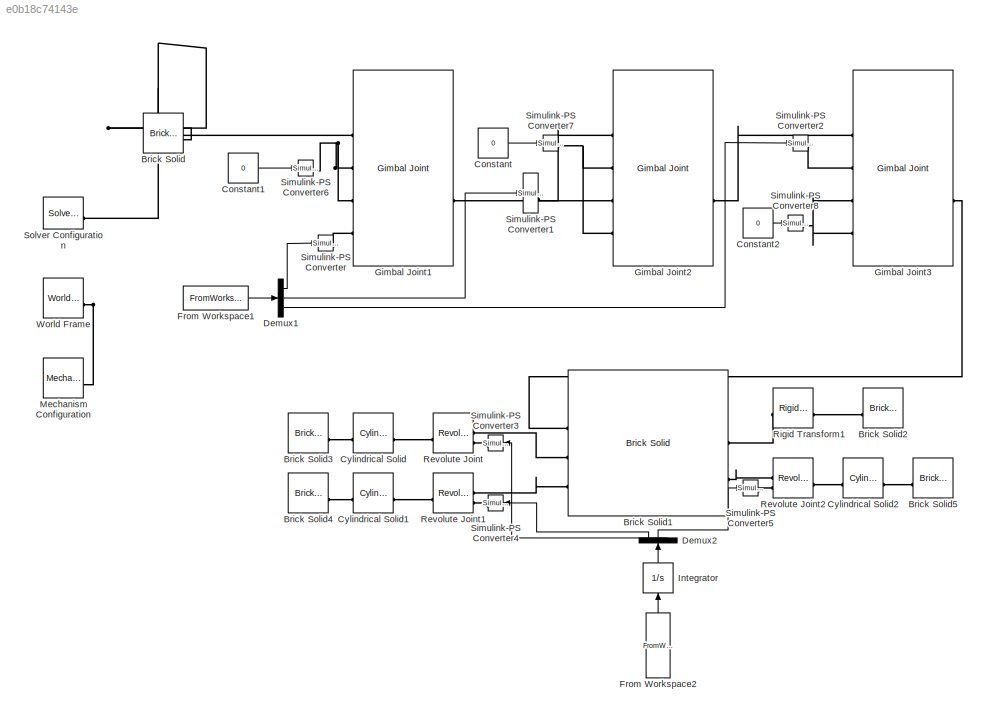
MODEL slx_e0b18c74143e
KIND model
CONFIG AbsTol = 1e-3
CONFIG EnableMultiTasking = on
CONFIG FixedStep = auto
CONFIG MaxStep = auto
CONFIG MinStep = auto
CONFIG RelTol = 1e-3
CONFIG SampleTimeConstraint = Unconstrained
CONFIG SolverName = VariableStepAuto
CONFIG StartTime = 0.0
CONFIG StopTime = 10
BLOCK [Reference] Brick Solid  REF=sm_lib/Body Elements/Brick Solid
  SourceBlock = sm_lib/Body Elements/Brick Solid
  SourceType = Brick Solid
BLOCK [Reference] Brick Solid1  REF=sm_lib/Body Elements/Brick Solid
  NameLocation = left
  SourceBlock = sm_lib/Body Elements/Brick Solid
  SourceType = Brick Solid
BLOCK [Reference] Brick Solid2  REF=sm_lib/Body Elements/Brick Solid
  NameLocation = top
  SourceBlock = sm_lib/Body Elements/Brick Solid
  SourceType = Brick Solid
BLOCK [Reference] Brick Solid3  REF=sm_lib/Body Elements/Brick Solid
  SourceBlock = sm_lib/Body Elements/Brick Solid
  SourceType = Brick Solid
BLOCK [Reference] Brick Solid4  REF=sm_lib/Body Elements/Brick Solid
  SourceBlock = sm_lib/Body Elements/Brick Solid
  SourceType = Brick Solid
BLOCK [Reference] Brick Solid5  REF=sm_lib/Body Elements/Brick Solid
  NameLocation = top
  SourceBlock = sm_lib/Body Elements/Brick Solid
  SourceType = Brick Solid
BLOCK [Constant] Constant
  Value = 0
BLOCK [Constant] Constant1
  Value = 0
BLOCK [Constant] Constant2
  Value = 0
BLOCK [Reference] Cylindrical Solid  REF=sm_lib/Body Elements/Cylindrical Solid
  SourceBlock = sm_lib/Body Elements/Cylindrical Solid
  SourceType = Cylindrical Solid
BLOCK [Reference] Cylindrical Solid1  REF=sm_lib/Body Elements/Cylindrical Solid
  SourceBlock = sm_lib/Body Elements/Cylindrical Solid
  SourceType = Cylindrical Solid
BLOCK [Reference] Cylindrical Solid2  REF=sm_lib/Body Elements/Cylindrical Solid
  NameLocation = top
  SourceBlock = sm_lib/Body Elements/Cylindrical Solid
  SourceType = Cylindrical Solid
BLOCK [Demux] Demux1
  Outputs = 3
BLOCK [Demux] Demux2
  NameLocation = right
  Outputs = 3
BLOCK [FromWorkspace] From Workspace1
  OutputAfterFinalValue = Setting to zero
  VariableName = sim_ts_phi
BLOCK [FromWorkspace] From Workspace2
  NameLocation = right
  OutputAfterFinalValue = Setting to zero
  VariableName = sim_ts_w_w
BLOCK [Reference] Gimbal Joint1  REF=sm_lib/Joints/Gimbal Joint
  SourceBlock = sm_lib/Joints/Gimbal Joint
  SourceType = Gimbal Joint
BLOCK [Reference] Gimbal Joint2  REF=sm_lib/Joints/Gimbal Joint
  SourceBlock = sm_lib/Joints/Gimbal Joint
  SourceType = Gimbal Joint
BLOCK [Reference] Gimbal Joint3  REF=sm_lib/Joints/Gimbal Joint
  SourceBlock = sm_lib/Joints/Gimbal Joint
  SourceType = Gimbal Joint
BLOCK [Integrator] Integrator
  NameLocation = right
BLOCK [Reference] Mechanism Configuration  REF=sm_lib/Utilities/Mechanism
Configuration
  SourceBlock = sm_lib/Utilities/Mechanism\nConfiguration
  SourceType = Mechanism\nConfiguration
BLOCK [Reference] Revolute Joint  REF=sm_lib/Joints/Revolute Joint
  NameLocation = top
  SourceBlock = sm_lib/Joints/Revolute Joint
  SourceType = Revolute Joint
BLOCK [Reference] Revolute Joint1  REF=sm_lib/Joints/Revolute Joint
  NameLocation = top
  SourceBlock = sm_lib/Joints/Revolute Joint
  SourceType = Revolute Joint
BLOCK [Reference] Revolute Joint2  REF=sm_lib/Joints/Revolute Joint
  SourceBlock = sm_lib/Joints/Revolute Joint
  SourceType = Revolute Joint
BLOCK [Reference] Rigid Transform1  REF=sm_lib/Frames and
Transforms/Rigid
Transform
  SourceBlock = sm_lib/Frames and\nTransforms/Rigid\nTransform
  SourceType = Rigid\nTransform
BLOCK [Reference] Simulink-PS Converter  REF=nesl_utility/Simulink-PS
Converter
  SourceBlock = nesl_utility/Simulink-PS\nConverter
  SourceType = Simulink-PS\nConverter
BLOCK [Reference] Simulink-PS Converter1  REF=nesl_utility/Simulink-PS
Converter
  SourceBlock = nesl_utility/Simulink-PS\nConverter
  SourceType = Simulink-PS\nConverter
BLOCK [Reference] Simulink-PS Converter2  REF=nesl_utility/Simulink-PS
Converter
  SourceBlock = nesl_utility/Simulink-PS\nConverter
  SourceType = Simulink-PS\nConverter
BLOCK [Reference] Simulink-PS Converter3  REF=nesl_utility/Simulink-PS
Converter
  NameLocation = top
  SourceBlock = nesl_utility/Simulink-PS\nConverter
  SourceType = Simulink-PS\nConverter
BLOCK [Reference] Simulink-PS Converter4  REF=nesl_utility/Simulink-PS
Converter
  NameLocation = top
  SourceBlock = nesl_utility/Simulink-PS\nConverter
  SourceType = Simulink-PS\nConverter
BLOCK [Reference] Simulink-PS Converter5  REF=nesl_utility/Simulink-PS
Converter
  SourceBlock = nesl_utility/Simulink-PS\nConverter
  SourceType = Simulink-PS\nConverter
BLOCK [Reference] Simulink-PS Converter6  REF=nesl_utility/Simulink-PS
Converter
  SourceBlock = nesl_utility/Simulink-PS\nConverter
  SourceType = Simulink-PS\nConverter
BLOCK [Reference] Simulink-PS Converter7  REF=nesl_utility/Simulink-PS
Converter
  SourceBlock = nesl_utility/Simulink-PS\nConverter
  SourceType = Simulink-PS\nConverter
BLOCK [Reference] Simulink-PS Converter8  REF=nesl_utility/Simulink-PS
Converter
  SourceBlock = nesl_utility/Simulink-PS\nConverter
  SourceType = Simulink-PS\nConverter
BLOCK [Reference] Solver Configuration  REF=nesl_utility/Solver
Configuration
  SourceBlock = nesl_utility/Solver\nConfiguration
  SourceType = Solver\nConfiguration
BLOCK [Reference] World Frame  REF=sm_lib/Frames and
Transforms/World Frame
  SourceBlock = sm_lib/Frames and\nTransforms/World Frame
  SourceType = World Frame
LINE Constant1:1 -> Simulink-PS Converter6:1
LINE Constant2:1 -> Simulink-PS Converter8:1
LINE Constant:1 -> Simulink-PS Converter7:1
LINE Demux1:1 -> Simulink-PS Converter:1
LINE Demux1:2 -> Simulink-PS Converter1:1
LINE Demux1:3 -> Simulink-PS Converter2:1
LINE Demux2:1 -> Simulink-PS Converter4:1
LINE Demux2:2 -> Simulink-PS Converter5:1
LINE Demux2:3 -> Simulink-PS Converter3:1
LINE From Workspace1:1 -> Demux1:1
LINE From Workspace2:1 -> Integrator:1
LINE Integrator:1 -> Demux2:1
PLINE Brick Solid1:LConn1 -- Gimbal Joint3:RConn1
PLINE Brick Solid1:LConn2 -- Revolute Joint:LConn1
PLINE Brick Solid1:LConn3 -- Revolute Joint1:LConn1
PLINE Brick Solid1:RConn1 -- Rigid Transform1:LConn1
PLINE Brick Solid1:RConn2 -- Revolute Joint2:LConn1
PLINE Brick Solid2:RConn1 -- Rigid Transform1:RConn1
PLINE Brick Solid3:RConn1 -- Cylindrical Solid:LConn1
PLINE Brick Solid4:RConn1 -- Cylindrical Solid1:LConn1
PLINE Brick Solid5:RConn1 -- Cylindrical Solid2:LConn1
PNET net1: Brick Solid:RConn1 -- Gimbal Joint1:LConn1 -- Mechanism Configuration:RConn1 -- Solver Configuration:RConn1 -- World Frame:RConn1
PLINE Cylindrical Solid1:RConn1 -- Revolute Joint1:RConn1
PLINE Cylindrical Solid2:RConn1 -- Revolute Joint2:RConn1
PLINE Cylindrical Solid:RConn1 -- Revolute Joint:RConn1
PNET net2: Gimbal Joint1:LConn2 -- Gimbal Joint1:LConn3 -- Simulink-PS Converter6:RConn1
PLINE Gimbal Joint1:LConn4 -- Simulink-PS Converter:RConn1
PLINE Gimbal Joint1:RConn1 -- Gimbal Joint2:LConn1
PNET net3: Gimbal Joint2:LConn2 -- Gimbal Joint2:LConn4 -- Simulink-PS Converter7:RConn1
PLINE Gimbal Joint2:LConn3 -- Simulink-PS Converter1:RConn1
PLINE Gimbal Joint2:RConn1 -- Gimbal Joint3:LConn1
PLINE Gimbal Joint3:LConn2 -- Simulink-PS Converter2:RConn1
PNET net4: Gimbal Joint3:LConn3 -- Gimbal Joint3:LConn4 -- Simulink-PS Converter8:RConn1
PLINE Revolute Joint1:LConn2 -- Simulink-PS Converter4:RConn1
PLINE Revolute Joint2:LConn2 -- Simulink-PS Converter5:RConn1
PLINE Revolute Joint:LConn2 -- Simulink-PS Converter3:RConn1
note: PNET lines group multi-terminal physical nets as a canonical sorted terminal list (undirected conserving connections); 2-terminal nets keep the pairwise PLINE form
